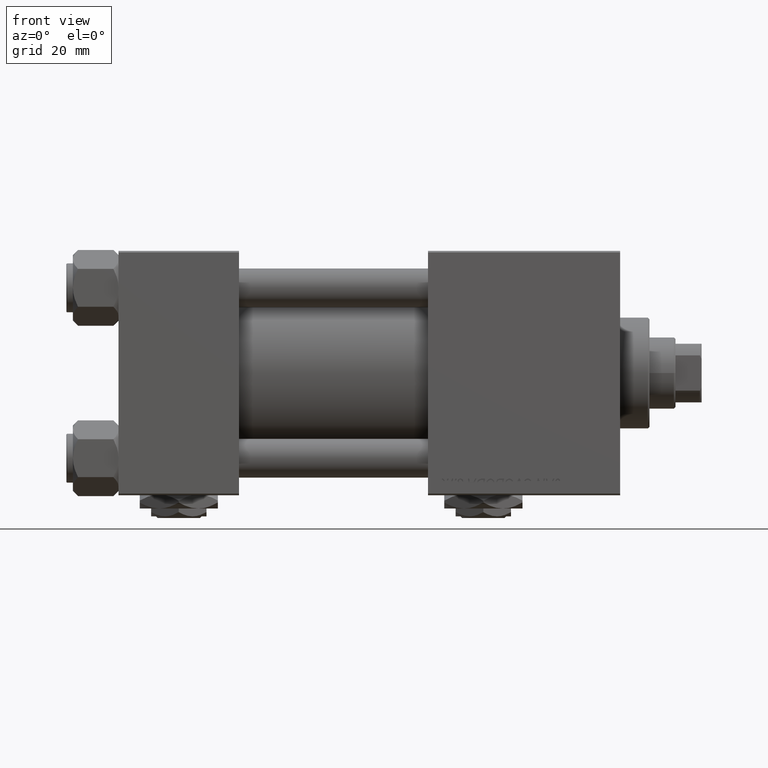
[diagram: clean part render]
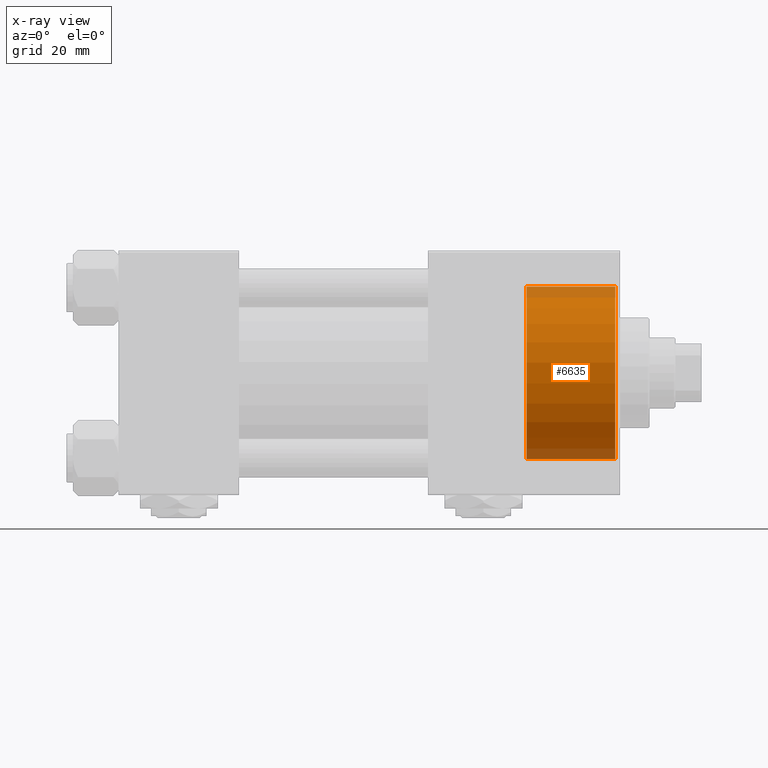
[diagram: x-ray — body ghosted, one internal face saturated and labeled with its STEP entity id]
A machine part, front view, then the same camera in x-ray: the body is ghosted and one INTERNAL B-rep face — a face not visible from any outside direction — is saturated and labeled: STEP entity #6635.
In plain terms, the highlighted cylindrical surface (partial cylindrical patch) has radius 26.5 mm, axis along (1, 0, 0).
Its self-contained STEP definition (entity closure, byte-faithful):
#717 = AXIS2_PLACEMENT_3D ( 'NONE', #20748, #12561, #28678 ) ;
#907 = CARTESIAN_POINT ( 'NONE',  ( 152.5000000000000568, 0.000000000000000000, -26.50000000000000355 ) ) ;
#939 = CARTESIAN_POINT ( 'NONE',  ( 125.2999999999999972, 3.245314017740486554E-15, 26.50000000000000355 ) ) ;
#2968 = ORIENTED_EDGE ( 'NONE', *, *, #40308, .T. ) ;
#6635 = ADVANCED_FACE ( 'NONE', ( #44517 ), #24450, .F. ) ;
#8195 = VERTEX_POINT ( 'NONE', #26389 ) ;
#8321 = LINE ( 'NONE', #939, #8962 ) ;
#8962 = VECTOR ( 'NONE', #40547, 1000.000000000000000 ) ;
#9987 = VERTEX_POINT ( 'NONE', #42587 ) ;
#10045 = CARTESIAN_POINT ( 'NONE',  ( 125.2999999999999972, 0.000000000000000000, 0.000000000000000000 ) ) ;
#12561 = DIRECTION ( 'NONE',  ( 1.000000000000000000, -0.000000000000000000, -0.000000000000000000 ) ) ;
#13890 = DIRECTION ( 'NONE',  ( 1.000000000000000000, -0.000000000000000000, -0.000000000000000000 ) ) ;
#18132 = DIRECTION ( 'NONE',  ( 0.000000000000000000, 0.000000000000000000, 1.000000000000000000 ) ) ;
#19007 = AXIS2_PLACEMENT_3D ( 'NONE', #26071, #29246, #18132 ) ;
#20748 = CARTESIAN_POINT ( 'NONE',  ( 125.2999999999999972, 0.000000000000000000, 0.000000000000000000 ) ) ;
#20998 = VERTEX_POINT ( 'NONE', #907 ) ;
#24450 = CYLINDRICAL_SURFACE ( 'NONE', #717, 26.50000000000000355 ) ;
#25043 = VECTOR ( 'NONE', #13890, 1000.000000000000000 ) ;
#26071 = CARTESIAN_POINT ( 'NONE',  ( 152.5000000000000568, 0.000000000000000000, 0.000000000000000000 ) ) ;
#26389 = CARTESIAN_POINT ( 'NONE',  ( 152.5000000000000568, 3.245314017740486554E-15, 26.50000000000000355 ) ) ;
#27623 = ORIENTED_EDGE ( 'NONE', *, *, #38310, .F. ) ;
#28653 = ORIENTED_EDGE ( 'NONE', *, *, #39410, .T. ) ;
#28678 = DIRECTION ( 'NONE',  ( 0.000000000000000000, 0.000000000000000000, -1.000000000000000000 ) ) ;
#29205 = EDGE_LOOP ( 'NONE', ( #27623, #2968, #28653, #34057 ) ) ;
#29222 = CARTESIAN_POINT ( 'NONE',  ( 125.2999999999999972, 0.000000000000000000, -26.50000000000000355 ) ) ;
#29246 = DIRECTION ( 'NONE',  ( 1.000000000000000000, 0.000000000000000000, 0.000000000000000000 ) ) ;
#29978 = CARTESIAN_POINT ( 'NONE',  ( 125.2999999999999972, 0.000000000000000000, -26.50000000000000355 ) ) ;
#29993 = CIRCLE ( 'NONE', #19007, 26.50000000000000355 ) ;
#30871 = EDGE_CURVE ( 'NONE', #47818, #20998, #37413, .T. ) ;
#34057 = ORIENTED_EDGE ( 'NONE', *, *, #30871, .F. ) ;
#37413 = LINE ( 'NONE', #29222, #25043 ) ;
#37549 = CIRCLE ( 'NONE', #50211, 26.50000000000000355 ) ;
#38310 = EDGE_CURVE ( 'NONE', #9987, #47818, #37549, .T. ) ;
#39319 = DIRECTION ( 'NONE',  ( 0.000000000000000000, 0.000000000000000000, -1.000000000000000000 ) ) ;
#39410 = EDGE_CURVE ( 'NONE', #8195, #20998, #29993, .T. ) ;
#40308 = EDGE_CURVE ( 'NONE', #9987, #8195, #8321, .T. ) ;
#40547 = DIRECTION ( 'NONE',  ( 1.000000000000000000, -0.000000000000000000, -0.000000000000000000 ) ) ;
#42587 = CARTESIAN_POINT ( 'NONE',  ( 125.2999999999999972, 3.245314017740486554E-15, 26.50000000000000355 ) ) ;
#44517 = FACE_OUTER_BOUND ( 'NONE', #29205, .T. ) ;
#47818 = VERTEX_POINT ( 'NONE', #29978 ) ;
#50211 = AXIS2_PLACEMENT_3D ( 'NONE', #10045, #50955, #39319 ) ;
#50955 = DIRECTION ( 'NONE',  ( 1.000000000000000000, 0.000000000000000000, 0.000000000000000000 ) ) ;